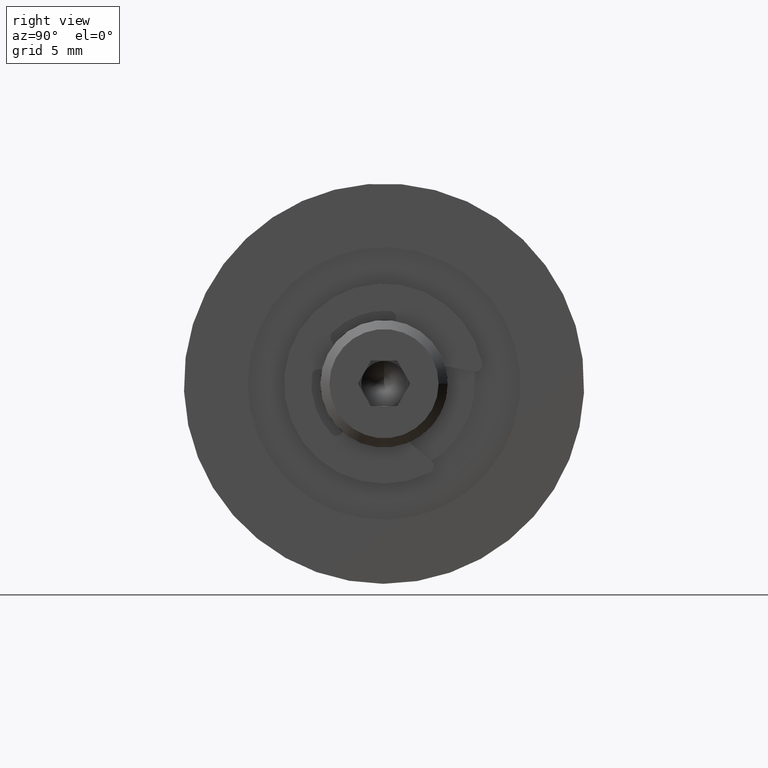
[diagram: clean part render]
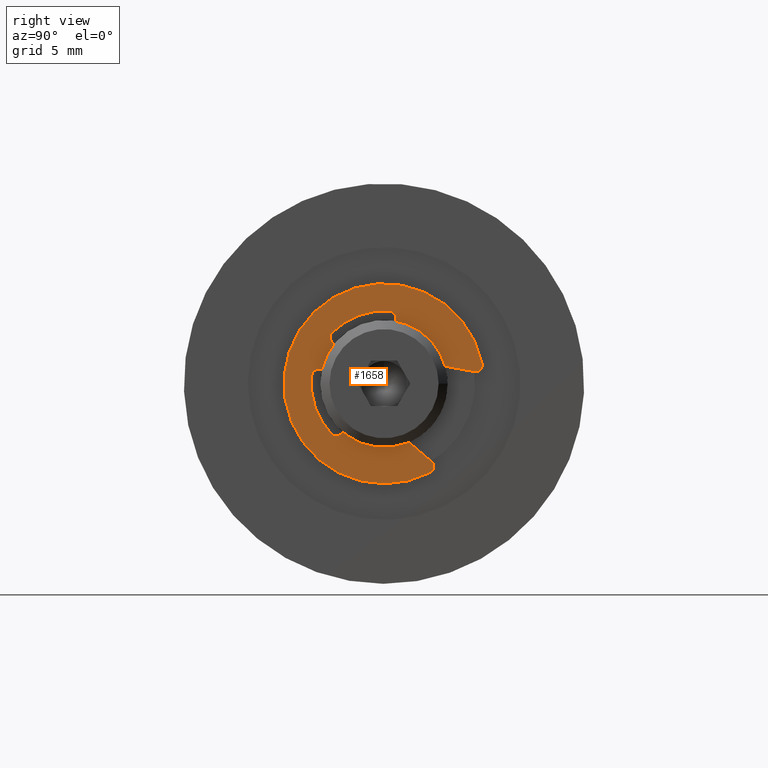
[diagram: same view with one face highlighted and labeled with its STEP entity id]
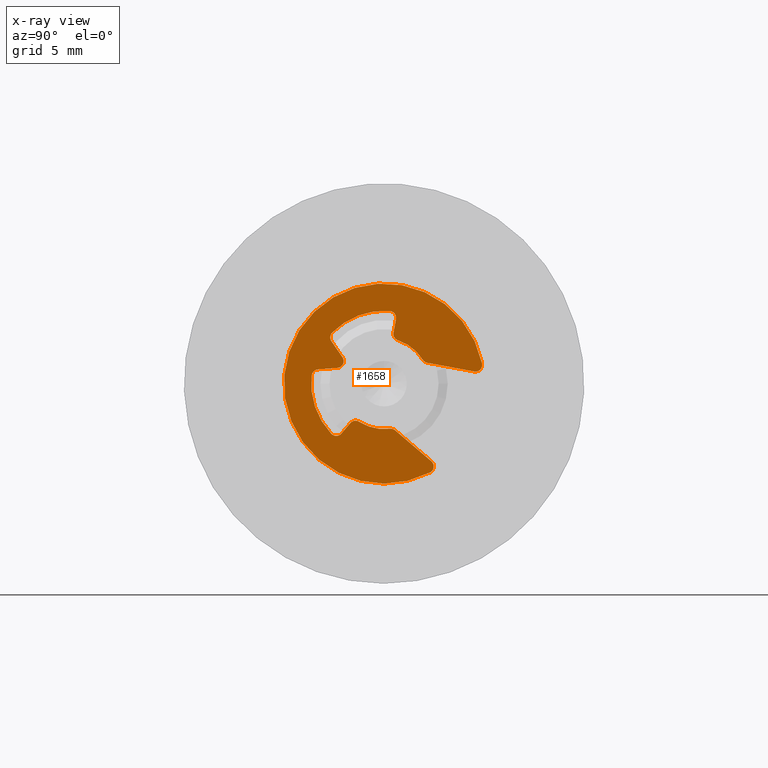
[diagram: x-ray of the same camera — body ghosted, the highlighted face saturated]
A machine part, right view. The second image highlights one B-rep face of the part: STEP entity #1658.
The next image is the same camera in x-ray: the body ghosted, the highlighted face saturated — about 0% of this face is hidden behind the body in this view.
In plain terms, the highlighted planar face has unit normal (1, 0, 0).
Its self-contained STEP definition (entity closure, byte-faithful):
#151=PLANE('',#1990);
#276=FACE_OUTER_BOUND('',#392,.T.);
#392=EDGE_LOOP('',(#1439,#1440,#1441,#1442,#1443,#1444,#1445,#1446,#1447,
#1448,#1449,#1450,#1451,#1452,#1453,#1454,#1455,#1456,#1457,#1458,#1459,
#1460));
#488=LINE('',#2840,#608);
#494=LINE('',#2864,#614);
#498=LINE('',#2876,#618);
#504=LINE('',#2900,#624);
#510=LINE('',#2924,#630);
#516=LINE('',#2947,#636);
#608=VECTOR('',#2350,10.);
#614=VECTOR('',#2376,10.);
#618=VECTOR('',#2388,10.);
#624=VECTOR('',#2414,10.);
#630=VECTOR('',#2440,10.);
#636=VECTOR('',#2466,10.);
#702=CIRCLE('',#1937,0.375);
#704=CIRCLE('',#1940,2.5);
#706=CIRCLE('',#1943,0.375);
#708=CIRCLE('',#1947,0.375);
#710=CIRCLE('',#1950,4.);
#712=CIRCLE('',#1953,0.375);
#714=CIRCLE('',#1957,0.375);
#716=CIRCLE('',#1961,0.375);
#718=CIRCLE('',#1964,4.);
#720=CIRCLE('',#1967,0.375);
#722=CIRCLE('',#1971,0.375);
#724=CIRCLE('',#1974,2.5);
#726=CIRCLE('',#1977,0.375);
#728=CIRCLE('',#1981,0.375);
#730=CIRCLE('',#1984,5.5);
#732=CIRCLE('',#1987,0.375);
#820=VERTEX_POINT('',#2818);
#821=VERTEX_POINT('',#2819);
#824=VERTEX_POINT('',#2827);
#826=VERTEX_POINT('',#2833);
#828=VERTEX_POINT('',#2839);
#830=VERTEX_POINT('',#2845);
#832=VERTEX_POINT('',#2851);
#834=VERTEX_POINT('',#2857);
#836=VERTEX_POINT('',#2863);
#838=VERTEX_POINT('',#2869);
#840=VERTEX_POINT('',#2875);
#842=VERTEX_POINT('',#2881);
#844=VERTEX_POINT('',#2887);
#846=VERTEX_POINT('',#2893);
#848=VERTEX_POINT('',#2899);
#850=VERTEX_POINT('',#2905);
#852=VERTEX_POINT('',#2911);
#854=VERTEX_POINT('',#2917);
#856=VERTEX_POINT('',#2923);
#858=VERTEX_POINT('',#2929);
#860=VERTEX_POINT('',#2935);
#862=VERTEX_POINT('',#2941);
#1007=EDGE_CURVE('',#820,#821,#702,.T.);
#1011=EDGE_CURVE('',#821,#824,#704,.T.);
#1014=EDGE_CURVE('',#824,#826,#706,.T.);
#1017=EDGE_CURVE('',#826,#828,#488,.T.);
#1020=EDGE_CURVE('',#828,#830,#708,.T.);
#1023=EDGE_CURVE('',#830,#832,#710,.T.);
#1026=EDGE_CURVE('',#832,#834,#712,.T.);
#1029=EDGE_CURVE('',#834,#836,#494,.T.);
#1032=EDGE_CURVE('',#836,#838,#714,.T.);
#1035=EDGE_CURVE('',#838,#840,#498,.T.);
#1038=EDGE_CURVE('',#840,#842,#716,.T.);
#1041=EDGE_CURVE('',#842,#844,#718,.T.);
#1044=EDGE_CURVE('',#844,#846,#720,.T.);
#1047=EDGE_CURVE('',#846,#848,#504,.T.);
#1050=EDGE_CURVE('',#848,#850,#722,.T.);
#1053=EDGE_CURVE('',#850,#852,#724,.T.);
#1056=EDGE_CURVE('',#852,#854,#726,.T.);
#1059=EDGE_CURVE('',#854,#856,#510,.T.);
#1062=EDGE_CURVE('',#856,#858,#728,.T.);
#1065=EDGE_CURVE('',#858,#860,#730,.T.);
#1068=EDGE_CURVE('',#860,#862,#732,.T.);
#1071=EDGE_CURVE('',#862,#820,#516,.T.);
#1439=ORIENTED_EDGE('',*,*,#1007,.F.);
#1440=ORIENTED_EDGE('',*,*,#1071,.F.);
#1441=ORIENTED_EDGE('',*,*,#1068,.F.);
#1442=ORIENTED_EDGE('',*,*,#1065,.F.);
#1443=ORIENTED_EDGE('',*,*,#1062,.F.);
#1444=ORIENTED_EDGE('',*,*,#1059,.F.);
#1445=ORIENTED_EDGE('',*,*,#1056,.F.);
#1446=ORIENTED_EDGE('',*,*,#1053,.F.);
#1447=ORIENTED_EDGE('',*,*,#1050,.F.);
#1448=ORIENTED_EDGE('',*,*,#1047,.F.);
#1449=ORIENTED_EDGE('',*,*,#1044,.F.);
#1450=ORIENTED_EDGE('',*,*,#1041,.F.);
#1451=ORIENTED_EDGE('',*,*,#1038,.F.);
#1452=ORIENTED_EDGE('',*,*,#1035,.F.);
#1453=ORIENTED_EDGE('',*,*,#1032,.F.);
#1454=ORIENTED_EDGE('',*,*,#1029,.F.);
#1455=ORIENTED_EDGE('',*,*,#1026,.F.);
#1456=ORIENTED_EDGE('',*,*,#1023,.F.);
#1457=ORIENTED_EDGE('',*,*,#1020,.F.);
#1458=ORIENTED_EDGE('',*,*,#1017,.F.);
#1459=ORIENTED_EDGE('',*,*,#1014,.F.);
#1460=ORIENTED_EDGE('',*,*,#1011,.F.);
#1658=ADVANCED_FACE('',(#276),#151,.T.);
#1937=AXIS2_PLACEMENT_3D('',#2820,#2328,#2329);
#1940=AXIS2_PLACEMENT_3D('',#2828,#2336,#2337);
#1943=AXIS2_PLACEMENT_3D('',#2834,#2343,#2344);
#1947=AXIS2_PLACEMENT_3D('',#2846,#2355,#2356);
#1950=AXIS2_PLACEMENT_3D('',#2852,#2362,#2363);
#1953=AXIS2_PLACEMENT_3D('',#2858,#2369,#2370);
#1957=AXIS2_PLACEMENT_3D('',#2870,#2381,#2382);
#1961=AXIS2_PLACEMENT_3D('',#2882,#2393,#2394);
#1964=AXIS2_PLACEMENT_3D('',#2888,#2400,#2401);
#1967=AXIS2_PLACEMENT_3D('',#2894,#2407,#2408);
#1971=AXIS2_PLACEMENT_3D('',#2906,#2419,#2420);
#1974=AXIS2_PLACEMENT_3D('',#2912,#2426,#2427);
#1977=AXIS2_PLACEMENT_3D('',#2918,#2433,#2434);
#1981=AXIS2_PLACEMENT_3D('',#2930,#2445,#2446);
#1984=AXIS2_PLACEMENT_3D('',#2936,#2452,#2453);
#1987=AXIS2_PLACEMENT_3D('',#2942,#2459,#2460);
#1990=AXIS2_PLACEMENT_3D('',#2949,#2468,#2469);
#2328=DIRECTION('center_axis',(0.,0.,-1.));
#2329=DIRECTION('ref_axis',(-0.840772933863791,0.541387914237169,0.));
#2336=DIRECTION('center_axis',(0.,0.,1.));
#2337=DIRECTION('ref_axis',(-0.840772933863792,0.541387914237169,0.));
#2343=DIRECTION('center_axis',(0.,0.,-1.));
#2344=DIRECTION('ref_axis',(-0.258819045102521,0.965925826289068,0.));
#2350=DIRECTION('',(-0.965925826289068,-0.25881904510252,0.));
#2355=DIRECTION('center_axis',(0.,0.,1.));
#2356=DIRECTION('ref_axis',(-0.258819045102522,0.965925826289068,0.));
#2362=DIRECTION('center_axis',(0.,0.,1.));
#2363=DIRECTION('ref_axis',(-0.934021173714134,-0.357217646615719,0.));
#2369=DIRECTION('center_axis',(0.,0.,1.));
#2370=DIRECTION('ref_axis',(-0.326679182899636,-0.945135287384841,0.));
#2376=DIRECTION('',(0.5,0.866025403784438,0.));
#2381=DIRECTION('center_axis',(0.,0.,-1.));
#2382=DIRECTION('ref_axis',(-0.866025403784439,-0.499999999999999,0.));
#2388=DIRECTION('',(0.5,-0.866025403784438,0.));
#2393=DIRECTION('center_axis',(0.,0.,1.));
#2394=DIRECTION('ref_axis',(-0.866025403784439,-0.499999999999999,0.));
#2400=DIRECTION('center_axis',(0.,0.,1.));
#2401=DIRECTION('ref_axis',(0.326679182899636,-0.945135287384841,0.));
#2407=DIRECTION('center_axis',(0.,0.,1.));
#2408=DIRECTION('ref_axis',(0.934021173714133,-0.357217646615719,0.));
#2414=DIRECTION('',(-0.965925826289069,0.258819045102519,0.));
#2419=DIRECTION('center_axis',(0.,0.,-1.));
#2420=DIRECTION('ref_axis',(0.991456891390555,-0.130434782608696,0.));
#2426=DIRECTION('center_axis',(0.,0.,1.));
#2427=DIRECTION('ref_axis',(0.991456891390555,-0.130434782608696,0.));
#2433=DIRECTION('center_axis',(0.,0.,-1.));
#2434=DIRECTION('ref_axis',(0.965925826289068,-0.258819045102521,0.));
#2440=DIRECTION('',(0.258819045102521,0.965925826289068,0.));
#2445=DIRECTION('center_axis',(0.,0.,-1.));
#2446=DIRECTION('ref_axis',(-0.603856023701441,-0.79709340898008,0.));
#2452=DIRECTION('center_axis',(0.,0.,-1.));
#2453=DIRECTION('ref_axis',(0.603856023701441,-0.79709340898008,0.));
#2459=DIRECTION('center_axis',(0.,0.,-1.));
#2460=DIRECTION('ref_axis',(-0.965925826289068,-0.258819045102521,0.));
#2466=DIRECTION('',(0.258819045102521,-0.965925826289068,0.));
#2468=DIRECTION('center_axis',(0.,0.,1.));
#2469=DIRECTION('ref_axis',(1.,0.,0.));
#2818=CARTESIAN_POINT('',(-2.055,1.65354739534531,0.7));
#2819=CARTESIAN_POINT('',(-2.10193233465948,1.35346978559292,0.7));
#2820=CARTESIAN_POINT('Origin',(-2.4172221848584,1.55649025343186,0.7));
#2827=CARTESIAN_POINT('',(-2.47864222847639,-0.326086956521739,0.7));
#2828=CARTESIAN_POINT('Origin',(0.,0.,0.7));
#2833=CARTESIAN_POINT('',(-2.7533814208344,-0.737222184858401,0.7));
#2834=CARTESIAN_POINT('Origin',(-2.85043856274784,-0.375,0.7));
#2839=CARTESIAN_POINT('',(-3.48288389662718,-0.93269178412358,0.7));
#2840=CARTESIAN_POINT('',(-2.7533814208344,-0.737222184858401,0.7));
#2845=CARTESIAN_POINT('',(-3.73608469485653,-1.42887058646288,0.7));
#2846=CARTESIAN_POINT('Origin',(-3.38582675471373,-1.29491396898198,0.7));
#2851=CARTESIAN_POINT('',(-1.30671673159854,-3.78054114953936,0.7));
#2852=CARTESIAN_POINT('Origin',(0.,0.,0.7));
#2857=CARTESIAN_POINT('',(-0.859452511592015,-3.61361541677005,0.7));
#2858=CARTESIAN_POINT('Origin',(-1.18421203801118,-3.42611541677005,0.7));
#2863=CARTESIAN_POINT('',(-0.324759526419165,-2.6875,0.7));
#2864=CARTESIAN_POINT('',(-0.859452511592015,-3.61361541677005,0.7));
#2869=CARTESIAN_POINT('',(0.324759526419165,-2.6875,0.7));
#2870=CARTESIAN_POINT('Origin',(0.,-2.875,0.7));
#2875=CARTESIAN_POINT('',(0.859452511592015,-3.61361541677005,0.7));
#2876=CARTESIAN_POINT('',(0.324759526419165,-2.6875,0.7));
#2881=CARTESIAN_POINT('',(1.30671673159854,-3.78054114953936,0.7));
#2882=CARTESIAN_POINT('Origin',(1.18421203801118,-3.42611541677005,0.7));
#2887=CARTESIAN_POINT('',(3.73608469485653,-1.42887058646288,0.7));
#2888=CARTESIAN_POINT('Origin',(0.,0.,0.7));
#2893=CARTESIAN_POINT('',(3.48288389662718,-0.93269178412358,0.7));
#2894=CARTESIAN_POINT('Origin',(3.38582675471373,-1.29491396898198,0.7));
#2899=CARTESIAN_POINT('',(2.7533814208344,-0.737222184858402,0.7));
#2900=CARTESIAN_POINT('',(3.48288389662718,-0.93269178412358,0.7));
#2905=CARTESIAN_POINT('',(2.47864222847639,-0.32608695652174,0.7));
#2906=CARTESIAN_POINT('Origin',(2.85043856274784,-0.375000000000001,0.7));
#2911=CARTESIAN_POINT('',(2.10193233465948,1.35346978559292,0.7));
#2912=CARTESIAN_POINT('Origin',(0.,5.55111512312578E-16,0.7));
#2917=CARTESIAN_POINT('',(2.055,1.65354739534531,0.7));
#2918=CARTESIAN_POINT('Origin',(2.4172221848584,1.55649025343186,0.7));
#2923=CARTESIAN_POINT('',(2.73253993661148,4.18216086293636,0.7));
#2924=CARTESIAN_POINT('',(2.055,1.65354739534531,0.7));
#2929=CARTESIAN_POINT('',(3.32120813035792,4.38401374939044,0.7));
#2930=CARTESIAN_POINT('Origin',(3.09476212146988,4.08510372102291,0.7));
#2935=CARTESIAN_POINT('',(-3.32120813035792,4.38401374939044,0.7));
#2936=CARTESIAN_POINT('Origin',(0.,0.,0.7));
#2941=CARTESIAN_POINT('',(-2.73253993661148,4.18216086293636,0.7));
#2942=CARTESIAN_POINT('Origin',(-3.09476212146988,4.08510372102291,0.7));
#2947=CARTESIAN_POINT('',(-2.73253993661148,4.18216086293636,0.7));
#2949=CARTESIAN_POINT('Origin',(-4.77048955893622E-17,-0.609424083440152,
0.7));